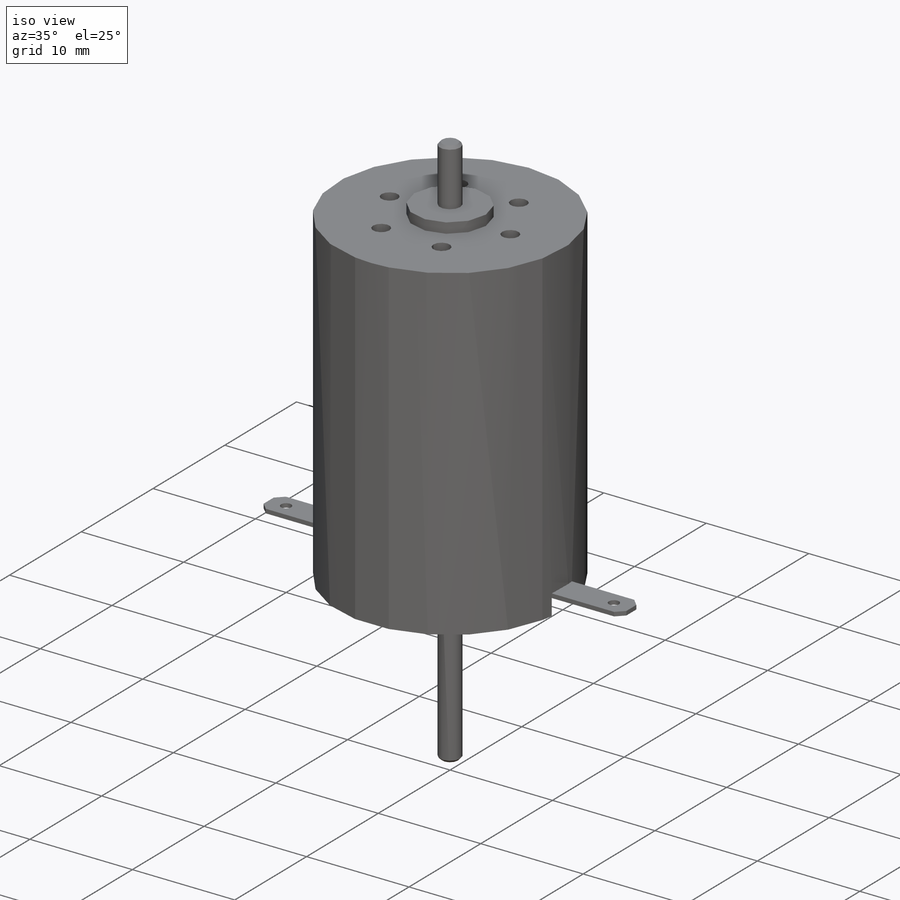
[diagram: iso view]
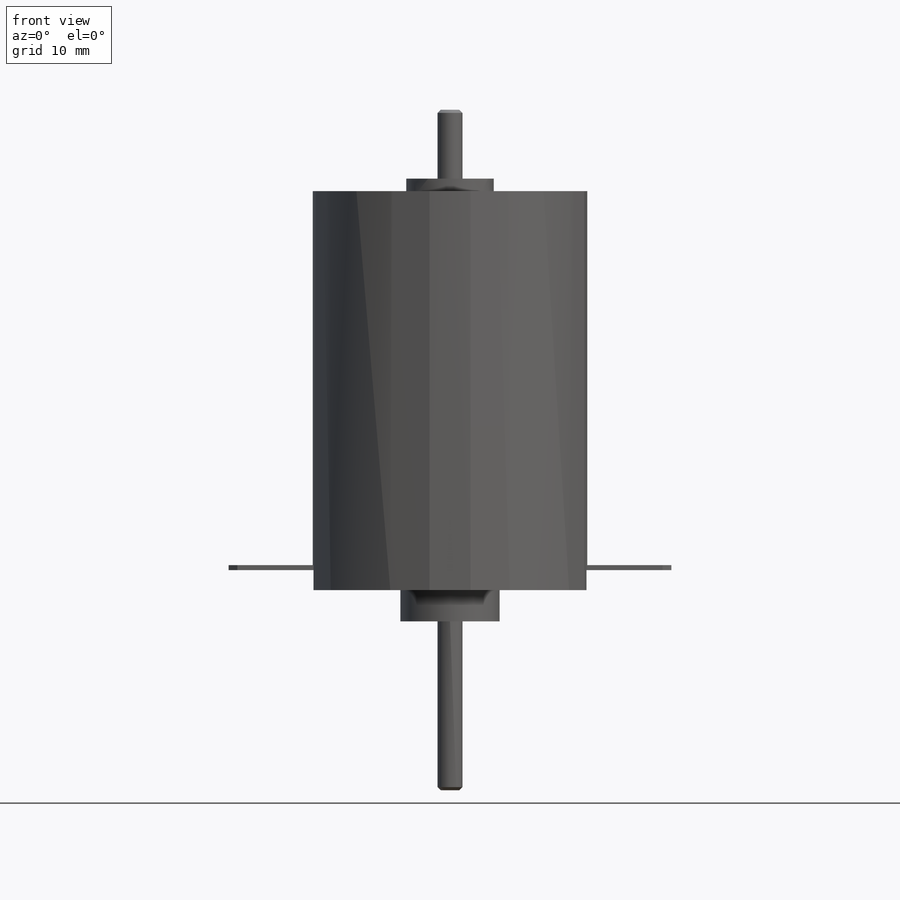
[diagram: front view]
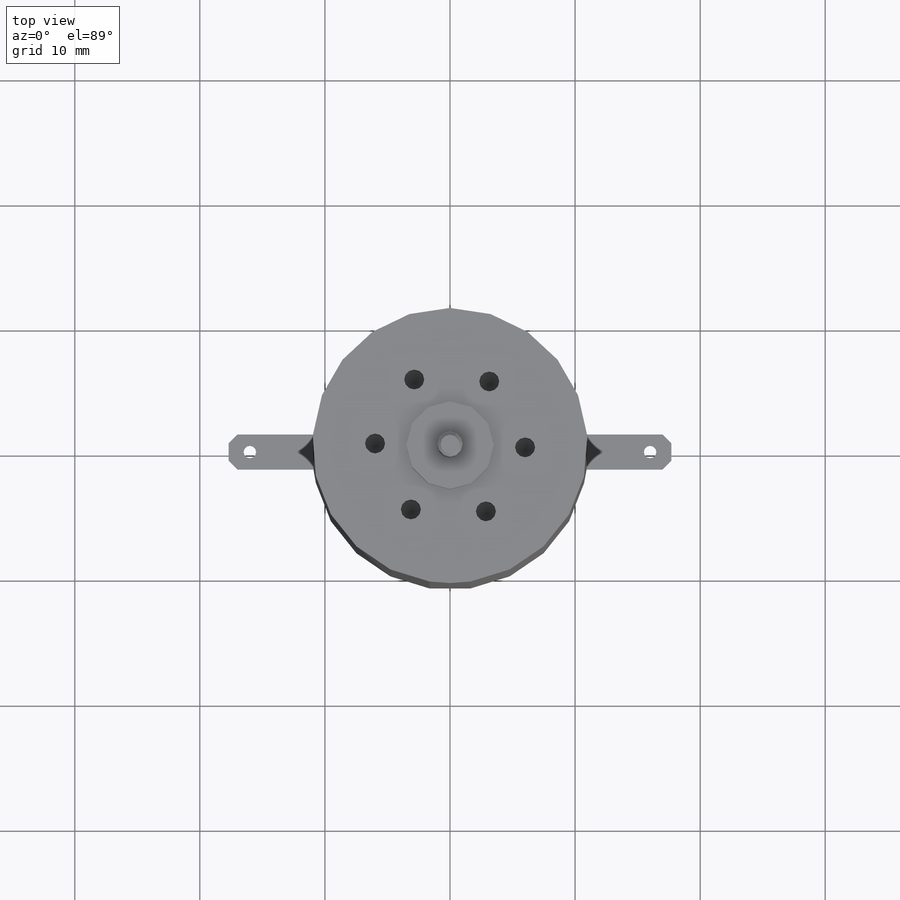
[diagram: top view]
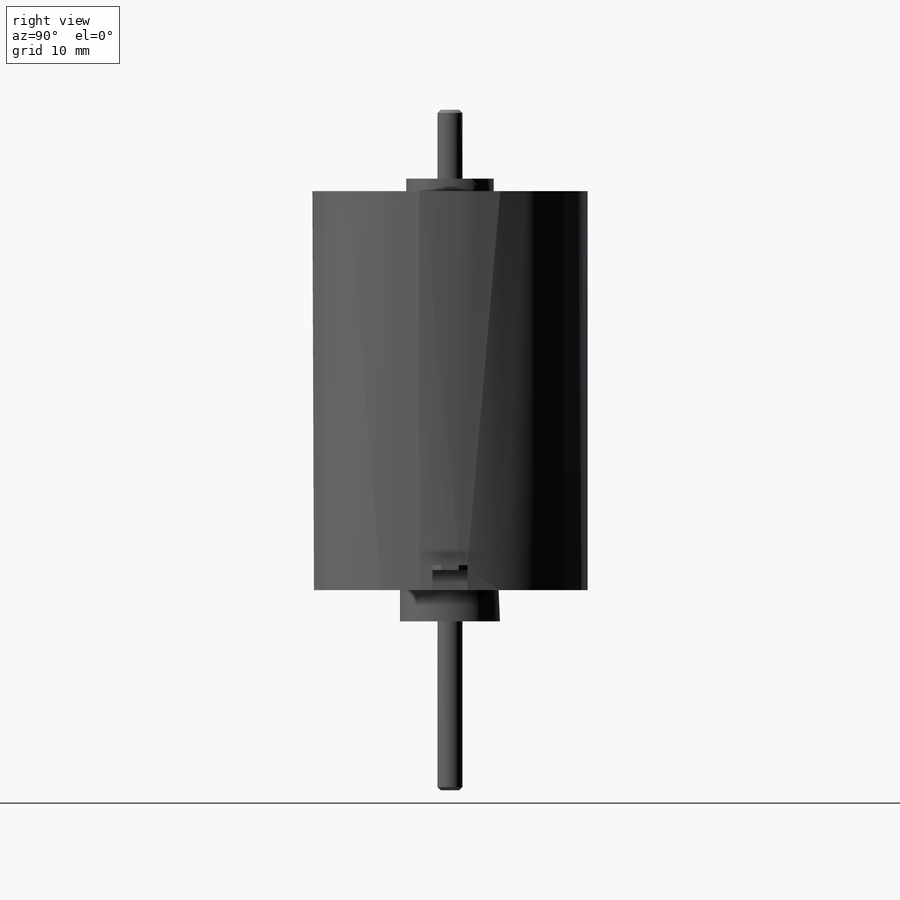
[diagram: right view]
SOLIDWORKS PART (.sldprt)
format: sldprt  version: not decoded by parser v0  size: 626,176 bytes
history: native  units: mm
features: sketch x12, extrude x7, chamfer x4, plane x3, cut_extrude x3, hole x2, material x1, thread x1, pattern_circular x1 (+9 scaffold rows collapsed)
feature tree (43):
  scaffold x9  (default folders/planes/origin — collapsed)
  material  "Matériau <non spécifié>"
  plane  "Face"
  plane  "Dessus"
  plane  "Droite"
  sketch  "Esquisse1"  dims[D1=22.0mm]
  extrude  "Extrusion1"  Depth=31.9mm
  sketch  "Esquisse2"  dims[D1=7.0mm]
  extrude  "Extrusion2"  Depth=1mm
  sketch  "Esquisse3"  dims[D1=2.0mm]
  extrude  "Extrusion3"  Depth=5.5mm
  chamfer  "Chanfrein1"  Distance=0.25mm Angle=45deg
  sketch  "Esquisse4"  dims[D1=8.0mm]
  extrude  "Extrusion4"  Depth=2.5mm
  sketch  "Esquisse5"  dims[D1=2.0mm]
  extrude  "Extrusion5"  Depth=13.5mm
  hole  "Trou taraudé M2x0.41"  Diameter=1.6mm Depth=4mm
  sketch  "Esquisse8"  dims[D1=6.0mm]
  sketch  "Esquisse7"  dims[hole-wizard template sketch: 47 standard entries collapsed; hole parameters kept: c15.Profondeur du trou pour taraudage=4.0mm c15.D3=~14.816244mm c15.Angle de pointe=118.0deg]
  thread  "Filetage de perçage1"  Diameter=4mm  [1 undecoded]
  pattern_circular  "Répétition circulaire1"  Count=6 Angle=60deg
  chamfer  "Chanfrein2"  Distance=0.25mm Angle=45deg
  sketch  "Esquisse14"  dims[c1.D3=22.0mm c1.D1=1.4mm c1.D2=2.8mm c2.D3=8.5mm]
  cut_extrude  "Enlèv. mat.-Extru.5"  Depth=2mm
  hole  "Répétition circulaire2"  Diameter=2
  sketch  "Esquisse16"  dims[D1=0.4mm]
  extrude  "Extrusion7"  Depth=9.2mm
  sketch  "Esquisse17"  dims[D1=0.4mm]
  extrude  "Extrusion8"  Depth=9.2mm
  chamfer  "Chanfrein3"  Distance=0.7mm Angle=45deg
  chamfer  "Chanfrein4"  Distance=0.7mm Angle=45deg
  sketch  "Esquisse18"  dims[D2=1.0mm D1=16.0mm]
  cut_extrude  "Enlèv. mat.-Extru.6"  [1 undecoded]
  sketch  "Esquisse19"  dims[D1=1.0mm D2=16.0mm]
  cut_extrude  "Enlèv. mat.-Extru.7"  [1 undecoded]
decode coverage: 28 of 30 modeling features carry decoded parameters
note: ~ marks probable driven/reference dimensions
note: 3 parameter values undecoded
note: suppression state not decoded; provenance and decode notes live in map.json
